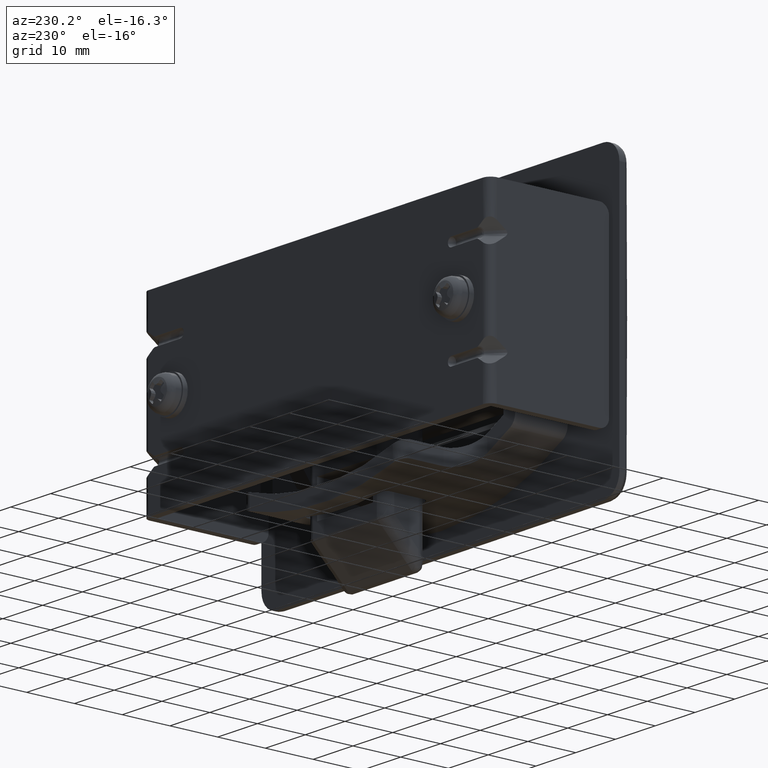
[diagram: clean part render]
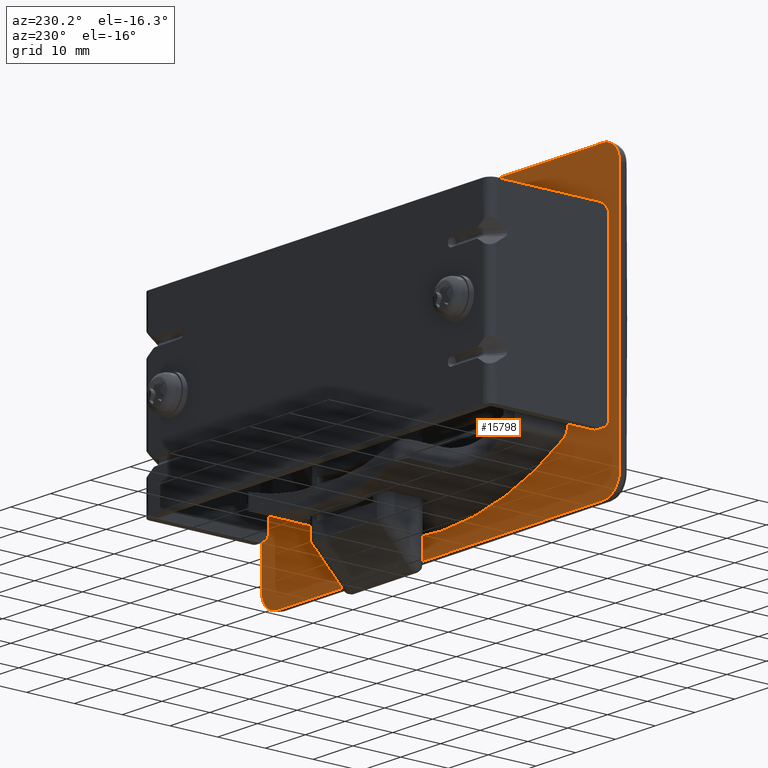
[diagram: same view with one face highlighted and labeled with its STEP entity id]
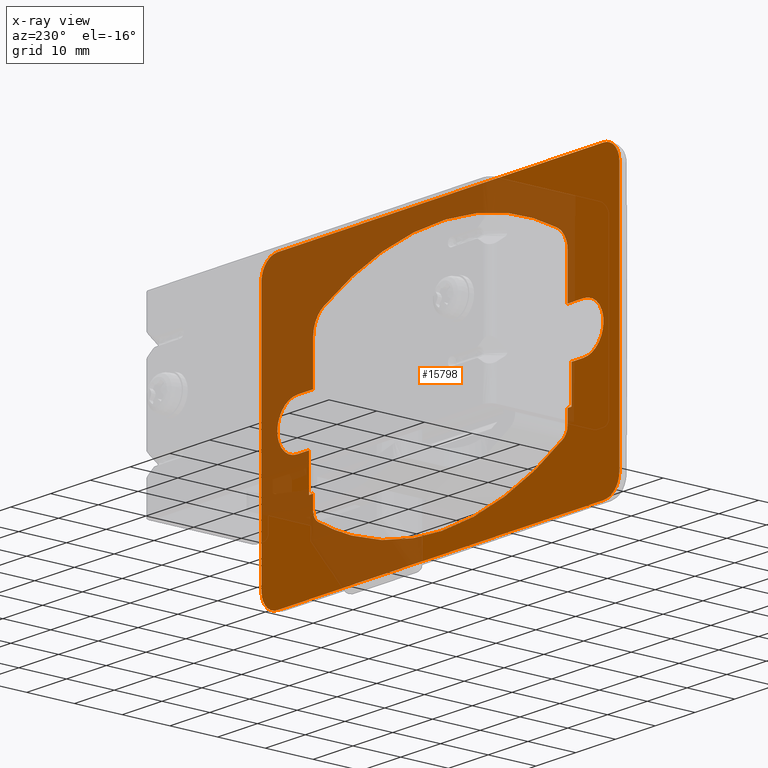
[diagram: x-ray of the same camera — body ghosted, the highlighted face saturated]
A machine part, auxiliary view. The second image highlights one B-rep face of the part: STEP entity #15798.
The next image is the same camera in x-ray: the body ghosted, the highlighted face saturated — about 49% of this face is hidden behind the body in this view.
In plain terms, the highlighted face is a freeform B-spline surface patch.
Its self-contained STEP definition (entity closure, byte-faithful):
#14092=CARTESIAN_POINT('',(-33.0,-1.014813E-013,21.0));
#14093=VERTEX_POINT('',#14092);
#14094=CARTESIAN_POINT('',(-33.0,0.0,17.500000000000000));
#14095=VERTEX_POINT('',#14094);
#14096=CARTESIAN_POINT('',(-33.0,-1.014813E-013,21.0));
#14097=CARTESIAN_POINT('',(-33.0,0.0,17.500000000000000));
#14098=QUASI_UNIFORM_CURVE('',1,(#14096,#14097),.UNSPECIFIED.,.F.,.U.);
#14099=EDGE_CURVE('',#14093,#14095,#14098,.T.);
#14170=CARTESIAN_POINT('',(-33.0,0.0,25.0));
#14171=VERTEX_POINT('',#14170);
#14172=CARTESIAN_POINT('',(-33.0,0.0,25.0));
#14173=CARTESIAN_POINT('',(-33.0,-1.014813E-013,21.0));
#14174=QUASI_UNIFORM_CURVE('',1,(#14172,#14173),.UNSPECIFIED.,.F.,.U.);
#14175=EDGE_CURVE('',#14171,#14093,#14174,.T.);
#14218=CARTESIAN_POINT('',(33.0,0.0,24.999999999999751));
#14219=VERTEX_POINT('',#14218);
#14220=CARTESIAN_POINT('',(33.0,0.0,21.0));
#14221=VERTEX_POINT('',#14220);
#14222=CARTESIAN_POINT('',(33.0,0.0,24.999999999999751));
#14223=CARTESIAN_POINT('',(33.0,0.0,21.0));
#14224=QUASI_UNIFORM_CURVE('',1,(#14222,#14223),.UNSPECIFIED.,.F.,.U.);
#14225=EDGE_CURVE('',#14219,#14221,#14224,.T.);
#14296=CARTESIAN_POINT('',(33.0,0.0,17.500000000000000));
#14297=VERTEX_POINT('',#14296);
#14298=CARTESIAN_POINT('',(33.0,0.0,21.0));
#14299=CARTESIAN_POINT('',(33.0,0.0,17.500000000000000));
#14300=QUASI_UNIFORM_CURVE('',1,(#14298,#14299),.UNSPECIFIED.,.F.,.U.);
#14301=EDGE_CURVE('',#14221,#14297,#14300,.T.);
#15185=CARTESIAN_POINT('',(-32.0,0.0,17.500000000000000));
#15186=VERTEX_POINT('',#15185);
#15192=CARTESIAN_POINT('',(-33.0,0.0,17.500000000000000));
#15193=CARTESIAN_POINT('',(-32.0,0.0,17.500000000000000));
#15194=QUASI_UNIFORM_CURVE('',1,(#15192,#15193),.UNSPECIFIED.,.F.,.U.);
#15195=EDGE_CURVE('',#14095,#15186,#15194,.T.);
#15274=CARTESIAN_POINT('',(32.0,0.0,17.500000000000000));
#15275=VERTEX_POINT('',#15274);
#15283=CARTESIAN_POINT('',(33.0,0.0,17.500000000000000));
#15284=CARTESIAN_POINT('',(32.0,0.0,17.500000000000000));
#15285=QUASI_UNIFORM_CURVE('',1,(#15283,#15284),.UNSPECIFIED.,.F.,.U.);
#15286=EDGE_CURVE('',#14297,#15275,#15285,.T.);
#15385=CARTESIAN_POINT('',(32.0,0.0,14.644149282988000));
#15386=VERTEX_POINT('',#15385);
#15387=CARTESIAN_POINT('',(32.0,0.0,17.500000000000000));
#15388=CARTESIAN_POINT('',(32.0,0.0,14.644149282988000));
#15389=QUASI_UNIFORM_CURVE('',1,(#15387,#15388),.UNSPECIFIED.,.F.,.U.);
#15390=EDGE_CURVE('',#15275,#15386,#15389,.T.);
#15405=CARTESIAN_POINT('',(-32.0,0.0,35.0));
#15406=VERTEX_POINT('',#15405);
#15407=CARTESIAN_POINT('',(-32.0,0.0,43.802621332188799));
#15408=VERTEX_POINT('',#15407);
#15409=CARTESIAN_POINT('',(-32.0,0.0,35.0));
#15410=CARTESIAN_POINT('',(-32.0,0.0,43.802621332188799));
#15411=QUASI_UNIFORM_CURVE('',1,(#15409,#15410),.UNSPECIFIED.,.F.,.U.);
#15412=EDGE_CURVE('',#15406,#15408,#15411,.T.);
#15474=CARTESIAN_POINT('',(-32.0,0.0,14.644149282988179));
#15475=VERTEX_POINT('',#15474);
#15481=CARTESIAN_POINT('',(-32.0,0.0,14.644149282988179));
#15482=CARTESIAN_POINT('',(-32.0,0.0,17.500000000000000));
#15483=QUASI_UNIFORM_CURVE('',1,(#15481,#15482),.UNSPECIFIED.,.F.,.U.);
#15484=EDGE_CURVE('',#15475,#15186,#15483,.T.);
#15492=CARTESIAN_POINT('',(-49.495499825562497,0.0,62.996999883708362));
#15493=CARTESIAN_POINT('',(49.495502239549857,0.0,62.996999883708362));
#15494=CARTESIAN_POINT('',(-49.495499825562497,0.0,-2.997001493033767));
#15495=CARTESIAN_POINT('',(49.495502239549857,0.0,-2.997001493033767));
#15496=B_SPLINE_SURFACE_WITH_KNOTS('',1,1,((#15492,#15494),(#15493,#15495)),.UNSPECIFIED.,.F.,.F.,.U.,(2,2),(2,2),(0.0,98.991002065112355),(0.0,65.994001376742119),.UNSPECIFIED.);
#15497=CARTESIAN_POINT('',(-45.0,0.0,56.0));
#15498=VERTEX_POINT('',#15497);
#15499=CARTESIAN_POINT('',(-45.0,0.0,4.0));
#15500=VERTEX_POINT('',#15499);
#15501=CARTESIAN_POINT('',(-45.0,0.0,56.0));
#15502=CARTESIAN_POINT('',(-45.0,0.0,4.0));
#15503=QUASI_UNIFORM_CURVE('',1,(#15501,#15502),.UNSPECIFIED.,.F.,.U.);
#15504=EDGE_CURVE('',#15498,#15500,#15503,.T.);
#15505=ORIENTED_EDGE('',*,*,#15504,.F.);
#15506=CARTESIAN_POINT('',(-41.0,0.0,60.0));
#15507=VERTEX_POINT('',#15506);
#15508=CARTESIAN_POINT('',(-45.0,0.0,56.0));
#15509=CARTESIAN_POINT('',(-45.000234441765052,0.0,56.441816643780783));
#15510=CARTESIAN_POINT('',(-44.863087834328041,0.0,57.259767808300658));
#15511=CARTESIAN_POINT('',(-44.374215751260778,0.0,58.216280577404973));
#15512=CARTESIAN_POINT('',(-43.830625710499433,0.0,58.854084481255889));
#15513=CARTESIAN_POINT('',(-43.237317848805162,0.0,59.347191507147400));
#15514=CARTESIAN_POINT('',(-42.325061377955507,0.0,59.842217152387683));
#15515=CARTESIAN_POINT('',(-41.507315219738992,0.0,60.000480286771420));
#15516=CARTESIAN_POINT('',(-41.0,0.0,60.0));
#15517=B_SPLINE_CURVE_WITH_KNOTS('',3,(#15508,#15509,#15510,#15511,#15512,#15513,#15514,#15515,#15516),.UNSPECIFIED.,.F.,.U.,(4,1,1,1,1,1,4),(0.000000169824615,1.325365966747295,2.454411218634435,3.190648165146074,3.828813682705028,4.761506417324411,6.283224731515503),.UNSPECIFIED.);
#15518=EDGE_CURVE('',#15498,#15507,#15517,.T.);
#15519=ORIENTED_EDGE('',*,*,#15518,.T.);
#15520=CARTESIAN_POINT('',(40.999999999999247,0.0,60.0));
#15521=VERTEX_POINT('',#15520);
#15522=CARTESIAN_POINT('',(40.999999999999247,0.0,60.0));
#15523=CARTESIAN_POINT('',(-41.0,0.0,60.0));
#15524=QUASI_UNIFORM_CURVE('',1,(#15522,#15523),.UNSPECIFIED.,.F.,.U.);
#15525=EDGE_CURVE('',#15521,#15507,#15524,.T.);
#15526=ORIENTED_EDGE('',*,*,#15525,.F.);
#15527=CARTESIAN_POINT('',(44.999999999999247,0.0,56.0));
#15528=VERTEX_POINT('',#15527);
#15529=CARTESIAN_POINT('',(40.999999999999247,0.0,60.0));
#15530=CARTESIAN_POINT('',(41.294518517707843,0.0,60.000048569649280));
#15531=CARTESIAN_POINT('',(41.834462472197643,0.0,59.940094315373507));
#15532=CARTESIAN_POINT('',(42.616167092607839,0.0,59.687172167213980));
#15533=CARTESIAN_POINT('',(43.334386330584550,0.0,59.286151021078211));
#15534=CARTESIAN_POINT('',(43.938634760187192,0.0,58.751771532771990));
#15535=CARTESIAN_POINT('',(44.485701237501992,0.0,58.032986476328297));
#15536=CARTESIAN_POINT('',(44.893013237136699,0.0,57.128967270883493));
#15537=CARTESIAN_POINT('',(45.000128302259917,0.0,56.376345187148978));
#15538=CARTESIAN_POINT('',(44.999999999999247,0.0,56.0));
#15539=B_SPLINE_CURVE_WITH_KNOTS('',3,(#15529,#15530,#15531,#15532,#15533,#15534,#15535,#15536,#15537,#15538),.UNSPECIFIED.,.F.,.U.,(4,1,1,1,1,1,1,4),(0.000000169837273,0.883555951543835,1.619894136487912,2.454411218641502,3.337945237755891,4.025168232381694,5.154213360410765,6.283224731515435),.UNSPECIFIED.);
#15540=EDGE_CURVE('',#15521,#15528,#15539,.T.);
#15541=ORIENTED_EDGE('',*,*,#15540,.T.);
#15542=CARTESIAN_POINT('',(44.999999999999247,0.0,4.0));
#15543=VERTEX_POINT('',#15542);
#15544=CARTESIAN_POINT('',(44.999999999999247,0.0,4.0));
#15545=CARTESIAN_POINT('',(44.999999999999247,0.0,56.0));
#15546=QUASI_UNIFORM_CURVE('',1,(#15544,#15545),.UNSPECIFIED.,.F.,.U.);
#15547=EDGE_CURVE('',#15543,#15528,#15546,.T.);
#15548=ORIENTED_EDGE('',*,*,#15547,.F.);
#15549=CARTESIAN_POINT('',(40.999999999999247,0.0,0.0));
#15550=VERTEX_POINT('',#15549);
#15551=CARTESIAN_POINT('',(44.999999999999247,0.0,4.0));
#15552=CARTESIAN_POINT('',(45.000053856044232,0.0,3.705479976593185));
#15553=CARTESIAN_POINT('',(44.940087569670773,0.0,3.165539898980442));
#15554=CARTESIAN_POINT('',(44.687180049384757,0.0,2.383828836873548));
#15555=CARTESIAN_POINT('',(44.310189785256128,0.0,1.708741500834784));
#15556=CARTESIAN_POINT('',(43.734777680533618,0.0,1.033258418143232));
#15557=CARTESIAN_POINT('',(43.058445382372611,0.0,0.531607791268231));
#15558=CARTESIAN_POINT('',(42.112457223720732,0.0,0.112346443786640));
#15559=CARTESIAN_POINT('',(41.441836534003293,0.0,-0.000267980519383));
#15560=CARTESIAN_POINT('',(40.999999999999247,0.0,0.0));
#15561=B_SPLINE_CURVE_WITH_KNOTS('',3,(#15551,#15552,#15553,#15554,#15555,#15556,#15557,#15558,#15559,#15560),.UNSPECIFIED.,.F.,.U.,(4,1,1,1,1,1,1,4),(0.000000169846741,0.883555951552012,1.619894136494914,2.454411218647726,3.190648165156143,4.270623821781753,4.957858934595619,6.283224731515273),.UNSPECIFIED.);
#15562=EDGE_CURVE('',#15543,#15550,#15561,.T.);
#15563=ORIENTED_EDGE('',*,*,#15562,.T.);
#15564=CARTESIAN_POINT('',(-41.0,0.0,0.0));
#15565=VERTEX_POINT('',#15564);
#15566=CARTESIAN_POINT('',(-41.0,0.0,0.0));
#15567=CARTESIAN_POINT('',(40.999999999999247,0.0,0.0));
#15568=QUASI_UNIFORM_CURVE('',1,(#15566,#15567),.UNSPECIFIED.,.F.,.U.);
#15569=EDGE_CURVE('',#15565,#15550,#15568,.T.);
#15570=ORIENTED_EDGE('',*,*,#15569,.F.);
#15571=CARTESIAN_POINT('',(-41.0,0.0,0.0));
#15572=CARTESIAN_POINT('',(-41.376349848237552,0.0,-0.000138243573109));
#15573=CARTESIAN_POINT('',(-42.014404216592332,0.0,0.090743088218669));
#15574=CARTESIAN_POINT('',(-42.808229208389911,0.0,0.408258917460096));
#15575=CARTESIAN_POINT('',(-43.490418484527211,0.0,0.834342627384550));
#15576=CARTESIAN_POINT('',(-44.087406303875419,0.0,1.402719716231154));
#15577=CARTESIAN_POINT('',(-44.612697158577618,0.0,2.199353013458258));
#15578=CARTESIAN_POINT('',(-44.929247288950393,0.0,3.067345238350787));
#15579=CARTESIAN_POINT('',(-45.000045642976190,0.0,3.705482744835258));
#15580=CARTESIAN_POINT('',(-45.0,0.0,4.0));
#15581=B_SPLINE_CURVE_WITH_KNOTS('',3,(#15571,#15572,#15573,#15574,#15575,#15576,#15577,#15578,#15579,#15580),.UNSPECIFIED.,.F.,.U.,(4,1,1,1,1,1,1,4),(0.000000169836098,1.129011540941094,1.914423627106259,2.552587458715994,3.534288140221328,4.368801274247978,5.399668949808747,6.283224731515272),.UNSPECIFIED.);
#15582=EDGE_CURVE('',#15565,#15500,#15581,.T.);
#15583=ORIENTED_EDGE('',*,*,#15582,.T.);
#15584=EDGE_LOOP('',(#15505,#15519,#15526,#15541,#15548,#15563,#15570,#15583));
#15585=FACE_OUTER_BOUND('',#15584,.T.);
#15586=CARTESIAN_POINT('',(29.422701568877400,0.0,48.290578810994099));
#15587=VERTEX_POINT('',#15586);
#15588=CARTESIAN_POINT('',(-29.422701568877748,0.0,48.290578810993900));
#15589=VERTEX_POINT('',#15588);
#15590=CARTESIAN_POINT('',(29.422701568877400,0.0,48.290578810994099));
#15591=CARTESIAN_POINT('',(27.747708607343601,0.0,49.233084604173371));
#15592=CARTESIAN_POINT('',(24.092000573506930,0.0,51.064709162558593));
#15593=CARTESIAN_POINT('',(18.542690631037122,0.0,53.168523642137707));
#15594=CARTESIAN_POINT('',(12.735765948441330,0.0,54.727383056310643));
#15595=CARTESIAN_POINT('',(6.725850377169977,0.0,55.735373774390283));
#15596=CARTESIAN_POINT('',(0.000555191741155,0.0,56.139809023550583));
#15597=CARTESIAN_POINT('',(-7.849366492794625,0.0,55.683667158254977));
#15598=CARTESIAN_POINT('',(-15.645967964997901,0.0,54.117836149982899));
#15599=CARTESIAN_POINT('',(-23.071867984870270,0.0,51.537958991411699));
#15600=CARTESIAN_POINT('',(-27.328977567342289,0.0,49.468753405361298));
#15601=CARTESIAN_POINT('',(-29.422701568877748,0.0,48.290578810993900));
#15602=B_SPLINE_CURVE_WITH_KNOTS('',3,(#15590,#15591,#15592,#15593,#15594,#15595,#15596,#15597,#15598,#15599,#15600,#15601),.UNSPECIFIED.,.F.,.U.,(4,1,1,1,1,1,1,1,1,4),(0.000000022352914,5.765874400764922,12.252530489516070,17.778184938242379,23.784331331069051,30.511237409916550,37.958802924559429,47.328407431359693,54.295550374436871,61.502902192082558),.UNSPECIFIED.);
#15603=EDGE_CURVE('',#15587,#15589,#15602,.T.);
#15604=ORIENTED_EDGE('',*,*,#15603,.T.);
#15605=CARTESIAN_POINT('',(-29.422701568877748,-7.270453E-016,48.290578810993900));
#15606=CARTESIAN_POINT('',(-29.621534941255661,-7.270453E-016,48.178699862425447));
#15607=CARTESIAN_POINT('',(-29.810351799486320,2.407412E-032,48.054493858939459));
#15608=CARTESIAN_POINT('',(-30.168856476839100,0.0,47.782540257342433));
#15609=CARTESIAN_POINT('',(-30.338540605626800,0.0,47.634788117635928));
#15610=CARTESIAN_POINT('',(-30.578596415804970,0.0,47.395351596388281));
#15611=CARTESIAN_POINT('',(-30.656207573770718,0.0,47.312547818528436));
#15612=CARTESIAN_POINT('',(-30.806422745099439,0.0,47.140894026467720));
#15613=CARTESIAN_POINT('',(-30.878186917995770,0.0,47.053005859922543));
#15614=CARTESIAN_POINT('',(-31.083754754136280,0.0,46.783345929033487));
#15615=CARTESIAN_POINT('',(-31.207873920223889,0.0,46.595603508409752));
#15616=CARTESIAN_POINT('',(-31.430824407336381,0.0,46.204528283016693));
#15617=CARTESIAN_POINT('',(-31.529689938252819,0.0,46.001110146226303));
#15618=CARTESIAN_POINT('',(-31.701257648952581,0.0,45.578572411280369));
#15619=CARTESIAN_POINT('',(-31.772156205609321,0.0,45.363932435951433));
#15620=CARTESIAN_POINT('',(-31.885710993480622,0.0,44.928256380846364));
#15621=CARTESIAN_POINT('',(-31.928358985098122,0.0,44.707218435029709));
#15622=CARTESIAN_POINT('',(-31.985544178199341,0.0,44.258776228053257));
#15623=CARTESIAN_POINT('',(-32.000000000000021,0.0,44.030600745460852));
#15624=CARTESIAN_POINT('',(-32.0,0.0,43.802621332188799));
#15625=B_SPLINE_CURVE_WITH_KNOTS('',3,(#15605,#15606,#15607,#15608,#15609,#15610,#15611,#15612,#15613,#15614,#15615,#15616,#15617,#15618,#15619,#15620,#15621,#15622,#15623,#15624),.UNSPECIFIED.,.F.,.U.,(4,2,2,2,2,2,2,2,2,4),(0.0,0.125000000000002,0.250000000000004,0.312500000000003,0.375000000000002,0.500000000000001,0.625000000000000,0.750000000000000,0.875000000000000,1.0),.UNSPECIFIED.);
#15626=EDGE_CURVE('',#15589,#15408,#15625,.T.);
#15627=ORIENTED_EDGE('',*,*,#15626,.T.);
#15628=ORIENTED_EDGE('',*,*,#15412,.F.);
#15629=CARTESIAN_POINT('',(-36.0,0.0,35.0));
#15630=VERTEX_POINT('',#15629);
#15631=CARTESIAN_POINT('',(-36.0,0.0,35.0));
#15632=CARTESIAN_POINT('',(-32.0,0.0,35.0));
#15633=QUASI_UNIFORM_CURVE('',1,(#15631,#15632),.UNSPECIFIED.,.F.,.U.);
#15634=EDGE_CURVE('',#15630,#15406,#15633,.T.);
#15635=ORIENTED_EDGE('',*,*,#15634,.F.);
#15636=CARTESIAN_POINT('',(-40.999999999999687,0.0,29.999998288610879));
#15637=VERTEX_POINT('',#15636);
#15638=CARTESIAN_POINT('',(-36.0,0.0,35.0));
#15639=CARTESIAN_POINT('',(-36.429527258170538,0.0,35.000128243918809));
#15640=CARTESIAN_POINT('',(-37.063494912394120,0.0,34.917769425251642));
#15641=CARTESIAN_POINT('',(-38.075328165429369,0.0,34.583567077649093));
#15642=CARTESIAN_POINT('',(-38.867564641511741,0.0,34.141192052457782));
#15643=CARTESIAN_POINT('',(-39.593839768362962,0.0,33.506720183873917));
#15644=CARTESIAN_POINT('',(-40.184019397116273,0.0,32.796644643774187));
#15645=CARTESIAN_POINT('',(-40.665168054169570,0.0,31.909692876227009));
#15646=CARTESIAN_POINT('',(-40.945415061044493,0.0,30.920380603066349));
#15647=CARTESIAN_POINT('',(-41.000015841055387,0.0,30.286333706488080));
#15648=CARTESIAN_POINT('',(-40.999999999999687,0.0,29.999998288610879));
#15649=B_SPLINE_CURVE_WITH_KNOTS('',3,(#15638,#15639,#15640,#15641,#15642,#15643,#15644,#15645,#15646,#15647,#15648),.UNSPECIFIED.,.F.,.U.,(4,1,1,1,1,1,1,1,4),(0.000000164535450,1.288541415041539,1.902147616311845,3.190706105321676,3.988325455436984,4.786031825670873,5.951884301082375,6.995016073714617,7.854031878961822),.UNSPECIFIED.);
#15650=EDGE_CURVE('',#15630,#15637,#15649,.T.);
#15651=ORIENTED_EDGE('',*,*,#15650,.T.);
#15652=CARTESIAN_POINT('',(-36.0,0.0,25.0));
#15653=VERTEX_POINT('',#15652);
#15654=CARTESIAN_POINT('',(-40.999999999999687,0.0,29.999998288610879));
#15655=CARTESIAN_POINT('',(-41.000103500469251,0.0,29.570481570606969));
#15656=CARTESIAN_POINT('',(-40.899238289747473,0.0,28.793316532687740));
#15657=CARTESIAN_POINT('',(-40.469554357770498,0.0,27.658608531354339));
#15658=CARTESIAN_POINT('',(-39.868307278232230,0.0,26.770635600999078));
#15659=CARTESIAN_POINT('',(-39.065396760178587,0.0,26.006244397971582));
#15660=CARTESIAN_POINT('',(-38.227098747260449,0.0,25.482577764409172));
#15661=CARTESIAN_POINT('',(-37.165768694151652,0.0,25.095474353495689));
#15662=CARTESIAN_POINT('',(-36.429520053780927,0.0,24.999888922972069));
#15663=CARTESIAN_POINT('',(-36.0,0.0,25.0));
#15664=B_SPLINE_CURVE_WITH_KNOTS('',3,(#15654,#15655,#15656,#15657,#15658,#15659,#15660,#15661,#15662,#15663),.UNSPECIFIED.,.F.,.U.,(4,1,1,1,1,1,1,4),(0.000000165133287,1.288541098845037,2.331668981506602,3.620225434057575,4.479219272231485,5.645079538038236,6.565491062551097,7.854029949815320),.UNSPECIFIED.);
#15665=EDGE_CURVE('',#15637,#15653,#15664,.T.);
#15666=ORIENTED_EDGE('',*,*,#15665,.T.);
#15667=CARTESIAN_POINT('',(-33.0,0.0,25.0));
#15668=CARTESIAN_POINT('',(-36.0,0.0,25.0));
#15669=QUASI_UNIFORM_CURVE('',1,(#15667,#15668),.UNSPECIFIED.,.F.,.U.);
#15670=EDGE_CURVE('',#14171,#15653,#15669,.T.);
#15671=ORIENTED_EDGE('',*,*,#15670,.F.);
#15672=ORIENTED_EDGE('',*,*,#14175,.T.);
#15673=ORIENTED_EDGE('',*,*,#14099,.T.);
#15674=ORIENTED_EDGE('',*,*,#15195,.T.);
#15675=ORIENTED_EDGE('',*,*,#15484,.F.);
#15676=CARTESIAN_POINT('',(-30.782608695652399,0.0,12.498242730074599));
#15677=VERTEX_POINT('',#15676);
#15678=CARTESIAN_POINT('',(-32.0,0.0,14.644149282988179));
#15679=CARTESIAN_POINT('',(-32.000432192347880,0.0,14.294698448366891));
#15680=CARTESIAN_POINT('',(-31.865393328819980,0.0,13.663394844406820));
#15681=CARTESIAN_POINT('',(-31.380952535894359,0.0,12.937843209250850));
#15682=CARTESIAN_POINT('',(-30.978721075424151,0.0,12.615406659818900));
#15683=CARTESIAN_POINT('',(-30.782608695652399,0.0,12.498242730074599));
#15684=B_SPLINE_CURVE_WITH_KNOTS('',3,(#15678,#15679,#15680,#15681,#15682,#15683),.UNSPECIFIED.,.F.,.U.,(4,1,1,4),(0.000000098658398,1.048221814227191,1.894835406270603,2.580201952966470),.UNSPECIFIED.);
#15685=EDGE_CURVE('',#15475,#15677,#15684,.T.);
#15686=ORIENTED_EDGE('',*,*,#15685,.T.);
#15687=CARTESIAN_POINT('',(30.782608695652101,0.0,12.498242730074400));
#15688=VERTEX_POINT('',#15687);
#15689=CARTESIAN_POINT('',(-30.782608695652399,0.0,12.498242730074599));
#15690=CARTESIAN_POINT('',(-28.542795042811800,0.0,11.159394234149190));
#15691=CARTESIAN_POINT('',(-24.188395120193810,0.0,8.928541173854585));
#15692=CARTESIAN_POINT('',(-16.826648931749862,0.0,6.229168744919807));
#15693=CARTESIAN_POINT('',(-10.156108930713840,0.0,4.730809370291278));
#15694=CARTESIAN_POINT('',(-2.450276809550193,0.0,3.900552490709632));
#15695=CARTESIAN_POINT('',(4.220339083893587,0.0,3.984722407469076));
#15696=CARTESIAN_POINT('',(10.729812480198399,0.0,4.894942993877186));
#15697=CARTESIAN_POINT('',(16.315985014654739,0.0,6.162051474574724));
#15698=CARTESIAN_POINT('',(23.039797510809709,0.0,8.389205926782690));
#15699=CARTESIAN_POINT('',(28.037081212406161,0.0,10.856975533432200));
#15700=CARTESIAN_POINT('',(30.782608695652101,0.0,12.498242730074400));
#15701=B_SPLINE_CURVE_WITH_KNOTS('',3,(#15689,#15690,#15691,#15692,#15693,#15694,#15695,#15696,#15697,#15698,#15699,#15700),.UNSPECIFIED.,.F.,.U.,(4,1,1,1,1,1,1,1,1,4),(0.000000024833952,7.828371201011571,14.646640304350649,23.485141712590281,28.283177263420221,37.879245935384617,43.434873424773052,47.980384059567548,55.051183073643990,64.647255008353454),.UNSPECIFIED.);
#15702=EDGE_CURVE('',#15677,#15688,#15701,.T.);
#15703=ORIENTED_EDGE('',*,*,#15702,.T.);
#15704=CARTESIAN_POINT('',(30.782608695652101,0.0,12.498242730074400));
#15705=CARTESIAN_POINT('',(30.955639509728460,0.0,12.601643422790810));
#15706=CARTESIAN_POINT('',(31.319380917224919,0.0,12.883677154880010));
#15707=CARTESIAN_POINT('',(31.731841561434450,0.0,13.441115280370729));
#15708=CARTESIAN_POINT('',(31.957618195816789,0.0,14.066291423494230));
#15709=CARTESIAN_POINT('',(32.000013454021499,0.0,14.469452671336780));
#15710=CARTESIAN_POINT('',(32.0,0.0,14.644149282988000));
#15711=B_SPLINE_CURVE_WITH_KNOTS('',3,(#15704,#15705,#15706,#15707,#15708,#15709,#15710),.UNSPECIFIED.,.F.,.U.,(4,1,1,1,4),(0.000000098659378,0.604734479117201,1.370723980937064,2.056101077096392,2.580201952966711),.UNSPECIFIED.);
#15712=EDGE_CURVE('',#15688,#15386,#15711,.T.);
#15713=ORIENTED_EDGE('',*,*,#15712,.T.);
#15714=ORIENTED_EDGE('',*,*,#15390,.F.);
#15715=ORIENTED_EDGE('',*,*,#15286,.F.);
#15716=ORIENTED_EDGE('',*,*,#14301,.F.);
#15717=ORIENTED_EDGE('',*,*,#14225,.F.);
#15718=CARTESIAN_POINT('',(36.0,0.0,25.0));
#15719=VERTEX_POINT('',#15718);
#15720=CARTESIAN_POINT('',(33.0,0.0,24.999999999999751));
#15721=CARTESIAN_POINT('',(36.0,0.0,25.0));
#15722=QUASI_UNIFORM_CURVE('',1,(#15720,#15721),.UNSPECIFIED.,.F.,.U.);
#15723=EDGE_CURVE('',#14219,#15719,#15722,.T.);
#15724=ORIENTED_EDGE('',*,*,#15723,.T.);
#15725=CARTESIAN_POINT('',(40.999999999999702,0.0,30.000001711389110));
#15726=VERTEX_POINT('',#15725);
#15727=CARTESIAN_POINT('',(36.0,0.0,25.0));
#15728=CARTESIAN_POINT('',(36.429519242562208,0.0,24.999887375707800));
#15729=CARTESIAN_POINT('',(37.308962667863803,0.0,25.113990692661758));
#15730=CARTESIAN_POINT('',(38.453135982592919,0.0,25.587820217736649));
#15731=CARTESIAN_POINT('',(39.315847412376868,0.0,26.219717826376471));
#15732=CARTESIAN_POINT('',(40.032808725595480,0.0,26.981958888028512));
#15733=CARTESIAN_POINT('',(40.568364680079632,0.0,27.863103648214519));
#15734=CARTESIAN_POINT('',(40.922838262863387,0.0,28.936480319670359));
#15735=CARTESIAN_POINT('',(41.000064630065033,0.0,29.631848926631751));
#15736=CARTESIAN_POINT('',(40.999999999999702,0.0,30.000001711389110));
#15737=B_SPLINE_CURVE_WITH_KNOTS('',3,(#15727,#15728,#15729,#15730,#15731,#15732,#15733,#15734,#15735,#15736),.UNSPECIFIED.,.F.,.U.,(4,1,1,1,1,1,1,4),(0.000000164544940,1.288541415046812,2.638477686334282,3.681621209307297,4.479220374139015,5.767801651694748,6.749583499795801,7.854031878961815),.UNSPECIFIED.);
#15738=EDGE_CURVE('',#15719,#15726,#15737,.T.);
#15739=ORIENTED_EDGE('',*,*,#15738,.T.);
#15740=CARTESIAN_POINT('',(36.0,0.0,35.0));
#15741=VERTEX_POINT('',#15740);
#15742=CARTESIAN_POINT('',(40.999999999999702,0.0,30.000001711389110));
#15743=CARTESIAN_POINT('',(41.000441555116062,0.0,30.572755852011031));
#15744=CARTESIAN_POINT('',(40.840032668778008,0.0,31.492830719801610));
#15745=CARTESIAN_POINT('',(40.314450425768833,0.0,32.586414219069567));
#15746=CARTESIAN_POINT('',(39.654200360177448,0.0,33.476935885461153));
#15747=CARTESIAN_POINT('',(38.867995495005751,0.0,34.146714168829348));
#15748=CARTESIAN_POINT('',(37.942019205314978,0.0,34.634225705149802));
#15749=CARTESIAN_POINT('',(37.043073918650371,0.0,34.925114907728521));
#15750=CARTESIAN_POINT('',(36.368153898330789,0.0,35.000066936684313));
#15751=CARTESIAN_POINT('',(36.0,0.0,35.0));
#15752=B_SPLINE_CURVE_WITH_KNOTS('',3,(#15742,#15743,#15744,#15745,#15746,#15747,#15748,#15749,#15750,#15751),.UNSPECIFIED.,.F.,.U.,(4,1,1,1,1,1,1,4),(0.000000165148673,1.718065342789925,2.761189565073977,3.620225434065108,5.031463162273400,5.829162165170328,6.749581841459339,7.854029949815332),.UNSPECIFIED.);
#15753=EDGE_CURVE('',#15726,#15741,#15752,.T.);
#15754=ORIENTED_EDGE('',*,*,#15753,.T.);
#15755=CARTESIAN_POINT('',(32.0,0.0,35.0));
#15756=VERTEX_POINT('',#15755);
#15757=CARTESIAN_POINT('',(36.0,0.0,35.0));
#15758=CARTESIAN_POINT('',(32.0,0.0,35.0));
#15759=QUASI_UNIFORM_CURVE('',1,(#15757,#15758),.UNSPECIFIED.,.F.,.U.);
#15760=EDGE_CURVE('',#15741,#15756,#15759,.T.);
#15761=ORIENTED_EDGE('',*,*,#15760,.T.);
#15762=CARTESIAN_POINT('',(32.0,0.0,43.802621332188949));
#15763=VERTEX_POINT('',#15762);
#15764=CARTESIAN_POINT('',(32.0,0.0,43.802621332188949));
#15765=CARTESIAN_POINT('',(32.0,0.0,35.0));
#15766=QUASI_UNIFORM_CURVE('',1,(#15764,#15765),.UNSPECIFIED.,.F.,.U.);
#15767=EDGE_CURVE('',#15763,#15756,#15766,.T.);
#15768=ORIENTED_EDGE('',*,*,#15767,.F.);
#15769=CARTESIAN_POINT('',(32.0,-1.962985E-015,43.802621332188949));
#15770=CARTESIAN_POINT('',(32.0,-1.962985E-015,44.030975825022381));
#15771=CARTESIAN_POINT('',(31.985672640986220,-1.367172E-031,44.256933750436332));
#15772=CARTESIAN_POINT('',(31.928856989249969,0.0,44.704139062764881));
#15773=CARTESIAN_POINT('',(31.886371759447520,0.0,44.925386962020532));
#15774=CARTESIAN_POINT('',(31.800948537372040,0.0,45.253629779586227));
#15775=CARTESIAN_POINT('',(31.768848192270632,0.0,45.362437533889967));
#15776=CARTESIAN_POINT('',(31.715084834672950,0.0,45.524710293824938));
#15777=CARTESIAN_POINT('',(31.696205334913820,0.0,45.578694605506470));
#15778=CARTESIAN_POINT('',(31.656841993186561,0.0,45.685550221256847));
#15779=CARTESIAN_POINT('',(31.636328880235322,0.0,45.738516192988719));
#15780=CARTESIAN_POINT('',(31.529649166682209,0.0,46.001060790122722));
#15781=CARTESIAN_POINT('',(31.431191078970780,0.0,46.203811936994583));
#15782=CARTESIAN_POINT('',(31.208318585489302,0.0,46.594896430622732));
#15783=CARTESIAN_POINT('',(31.083908547976730,0.0,46.783232203788756));
#15784=CARTESIAN_POINT('',(30.877029413116890,0.0,47.054479897495433));
#15785=CARTESIAN_POINT('',(30.804487296440438,0.0,47.143189648954902));
#15786=CARTESIAN_POINT('',(30.654879788202251,0.0,47.313979305355240));
#15787=CARTESIAN_POINT('',(30.577571098931742,0.0,47.396408613998723));
#15788=CARTESIAN_POINT('',(30.338280717321339,0.0,47.634978143934021));
#15789=CARTESIAN_POINT('',(30.168966663143411,0.0,47.782437796223903));
#15790=CARTESIAN_POINT('',(29.810772578875010,0.0,48.054193513442343));
#15791=CARTESIAN_POINT('',(29.621897739913230,0.0,48.178495723996413));
#15792=CARTESIAN_POINT('',(29.422701568877699,0.0,48.290578810994297));
#15793=B_SPLINE_CURVE_WITH_KNOTS('',3,(#15769,#15770,#15771,#15772,#15773,#15774,#15775,#15776,#15777,#15778,#15779,#15780,#15781,#15782,#15783,#15784,#15785,#15786,#15787,#15788,#15789,#15790,#15791,#15792),.UNSPECIFIED.,.F.,.U.,(4,2,2,2,2,2,2,2,2,2,2,4),(0.0,0.124999999999996,0.249999999999992,0.312499999999990,0.343749999999989,0.374999999999988,0.499999999999991,0.624999999999993,0.687499999999994,0.749999999999995,0.874999999999998,1.0),.UNSPECIFIED.);
#15794=EDGE_CURVE('',#15763,#15587,#15793,.T.);
#15795=ORIENTED_EDGE('',*,*,#15794,.T.);
#15796=EDGE_LOOP('',(#15604,#15627,#15628,#15635,#15651,#15666,#15671,#15672,#15673,#15674,#15675,#15686,#15703,#15713,#15714,#15715,#15716,#15717,#15724,#15739,#15754,#15761,#15768,#15795));
#15797=FACE_BOUND('',#15796,.T.);
#15798=ADVANCED_FACE('',(#15585,#15797),#15496,.T.);